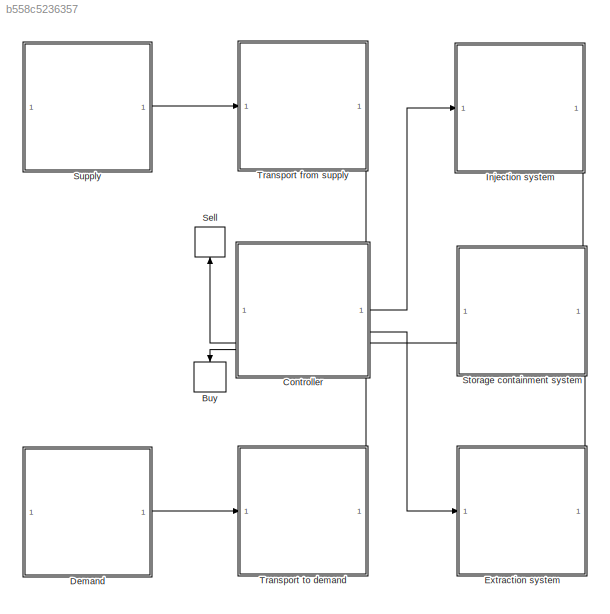
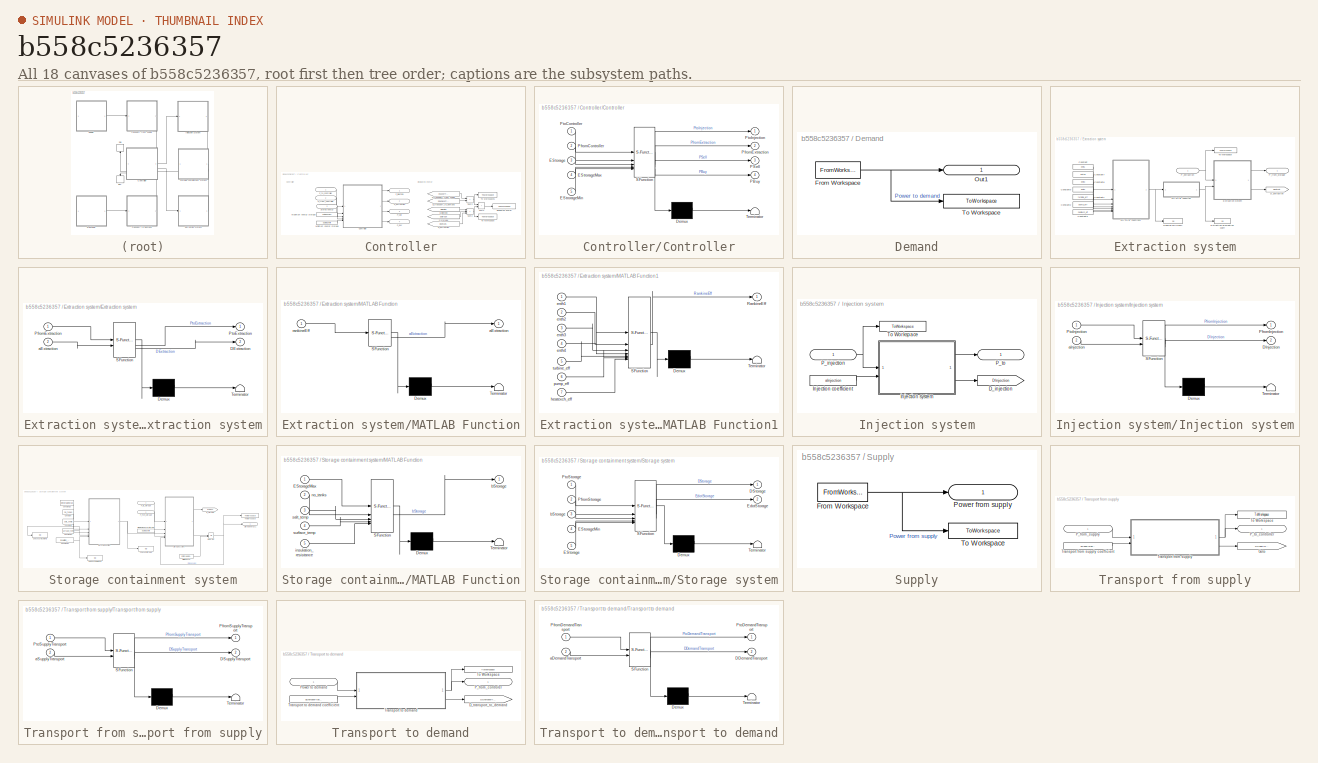
[diagram: thumbnail index - all 18 canvases of the model, root first then tree order]
MODEL slx_b558c5236357
KIND model
CONFIG AbsTol = auto
CONFIG EnableMultiTasking = off
CONFIG FixedStep = 0.05
CONFIG InitFcn = clear all;\nclose all;\nclc;\n\n% add the data and script directories\naddpath('data','scripts');\n\n% load the constants (units)\nconstants;\n\n% load the simulation parameters \npreprocessing;
CONFIG MaxStep = 0.05
CONFIG MinStep = auto
CONFIG RelTol = 1e-3
CONFIG SampleTimeConstraint = Unconstrained
CONFIG SolverName = FixedStepAuto
CONFIG StartTime = 0.0
CONFIG StopFcn = postprocessing;
CONFIG StopTime = 35040
BLOCK [ToWorkspace] Buy
  FixptAsFi = on
  MaxDataPoints = inf
  NameLocation = left
  SampleTime = -1
  VariableName = PBuy
BLOCK [SubSystem] Controller
  PortSchema = {"entries":[{"content":{"sides":[{"content":{"connectorIds":["Out3","Out4"]},"type":"ConnectorPlacement.EquallySpacedRectSide","uuid":"4daf33ce-c96a-4783-b5c4-228eed953e01"},{"content":{"connectorIds":["Out1","In3","Out2"],"side":"RIGHT"},"type":"ConnectorPlacement.EquallySpacedRectSide","uuid":"e9942e50-8467-4af8-b79b-80636cbc76e5"},{"content":{"connectorIds":["In1"],"side":"TOP"},"type":"Connect...<+415ch>
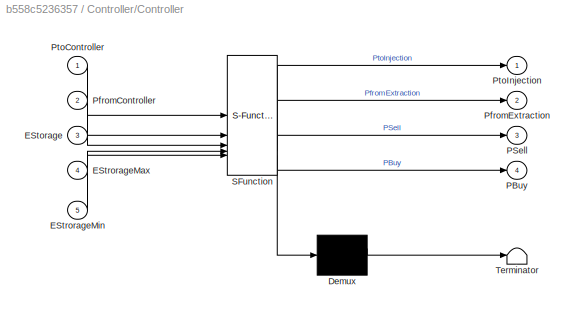
BLOCK [SubSystem] Controller/Controller
  ErrorFcn = Stateflow.Translate.translate
  PermitHierarchicalResolution = ExplicitOnly
  SFBlockType = MATLAB Function
  TreatAsAtomicUnit = on
BLOCK [Demux] Controller/Controller/ Demux 
  Outputs = 1
BLOCK [S-Function] Controller/Controller/ SFunction 
  EnableBusSupport = on
  FunctionName = sf_sfun
  PortCounts = [5 5]
  SFcnIsStateOwnerBlock = off
  SFunctionDeploymentMode = off
  Tag = Stateflow S-Function 3
BLOCK [Terminator] Controller/Controller/ Terminator 
BLOCK [Inport] Controller/Controller/EStorage
  Port = 3
BLOCK [Inport] Controller/Controller/EStrorageMax
  Port = 4
BLOCK [Inport] Controller/Controller/EStrorageMin
  Port = 5
BLOCK [Outport] Controller/Controller/PBuy
  Port = 4
BLOCK [Outport] Controller/Controller/PSell
  Port = 3
BLOCK [Inport] Controller/Controller/PfromController
  Port = 2
BLOCK [Outport] Controller/Controller/PfromExtraction
  Port = 2
BLOCK [Inport] Controller/Controller/PtoController
BLOCK [Outport] Controller/Controller/PtoInjection
BLOCK [From] Controller/D_extraction
  GotoTag = DExtraction
  TagVisibility = global
BLOCK [From] Controller/D_injection
  GotoTag = DInjection
  TagVisibility = global
BLOCK [From] Controller/D_storage
  GotoTag = DStorage
  TagVisibility = global
BLOCK [From] Controller/D_transport_from_supply
  GotoTag = DSupplyTransport
  TagVisibility = global
BLOCK [From] Controller/D_transport_to_demand
  GotoTag = DDemandTransport
  TagVisibility = global
BLOCK [ToWorkspace] Controller/Dissipated energy
  FixptAsFi = on
  MaxDataPoints = inf
  SampleTime = -1
  VariableName = D
BLOCK [Constant] Controller/Maximum energy storage
  Value = EStorageMax
BLOCK [Constant] Controller/Minimum energy storage
  Value = EStorageMin
BLOCK [Outport] Controller/P_buy
  IconDisplay = Signal name
  Port = 4
BLOCK [Outport] Controller/P_extraction
  IconDisplay = Signal name
  Port = 2
BLOCK [Inport] Controller/P_from_controller
  IconDisplay = Port number and signal name
  Port = 2
BLOCK [Outport] Controller/P_injection
  IconDisplay = Signal name
BLOCK [Outport] Controller/P_sell
  IconDisplay = Signal name
  Port = 3
BLOCK [Inport] Controller/P_to_controller
  IconDisplay = Port number and signal name
BLOCK [Inport] Controller/Stored energy
  IconDisplay = Signal name
  Port = 3
BLOCK [Sum] Controller/Sum1
  IconShape = rectangular
BLOCK [Sum] Controller/Sum2
  IconShape = rectangular
  Inputs = +++
BLOCK [Sum] Controller/Sum3
  IconShape = rectangular
BLOCK [ToWorkspace] Controller/To Workspace
  FixptAsFi = on
  MaxDataPoints = inf
  SampleTime = -1
  VariableName = DStorage
BLOCK [ToWorkspace] Controller/To Workspace1
  FixptAsFi = on
  MaxDataPoints = inf
  SampleTime = -1
  VariableName = DTransport
BLOCK [SubSystem] Demand
BLOCK [FromWorkspace] Demand/From Workspace
  OutputAfterFinalValue = Setting to zero
  VariableName = Demand
BLOCK [Outport] Demand/Out1
  IconDisplay = Signal name
BLOCK [ToWorkspace] Demand/To Workspace
  FixptAsFi = on
  MaxDataPoints = inf
  SampleTime = -1
  VariableName = PDemand
BLOCK [SubSystem] Extraction system
  NameLocation = top
  PortSchema = {"entries":[{"content":{"sides":[{"content":{"connectorIds":[]},"type":"ConnectorPlacement.EquallySpacedRectSide","uuid":"05c5933d-55fc-4e06-853f-fc26d42905f9"},{"content":{"connectorIds":["In1"],"side":"RIGHT"},"type":"ConnectorPlacement.EquallySpacedRectSide","uuid":"327426c5-31d5-498b-a2bd-83e49353408c"},{"content":{"connectorIds":[],"side":"TOP"},"type":"ConnectorPlacement.EquallySpacedRectSid...<+384ch>
BLOCK [Constant] Extraction system/Constant
  Value = enth1
BLOCK [Constant] Extraction system/Constant1
  Value = turbine_eff
BLOCK [Constant] Extraction system/Constant2
  Value = pump_eff
BLOCK [Constant] Extraction system/Constant3
  Value = heatexch_eff
BLOCK [Constant] Extraction system/Constant7
  Value = enth2
BLOCK [Constant] Extraction system/Constant8
  Value = enth3
BLOCK [Constant] Extraction system/Constant9
  Value = enth4
BLOCK [Goto] Extraction system/D_extraction
  GotoTag = DExtraction
  TagVisibility = global
BLOCK [Display] Extraction system/Extraction dissipation coeff
  Decimation = 1
BLOCK [SubSystem] Extraction system/Extraction system
  ErrorFcn = Stateflow.Translate.translate
  PermitHierarchicalResolution = ExplicitOnly
  SFBlockType = MATLAB Function
  TreatAsAtomicUnit = on
BLOCK [Demux] Extraction system/Extraction system/ Demux 
  Outputs = 1
BLOCK [S-Function] Extraction system/Extraction system/ SFunction 
  EnableBusSupport = on
  FunctionName = sf_sfun
  PortCounts = [2 3]
  SFcnIsStateOwnerBlock = off
  SFunctionDeploymentMode = off
  Tag = Stateflow S-Function 4
BLOCK [Terminator] Extraction system/Extraction system/ Terminator 
BLOCK [Outport] Extraction system/Extraction system/DExtraction
  Port = 2
BLOCK [Inport] Extraction system/Extraction system/PfromExtraction
BLOCK [Outport] Extraction system/Extraction system/PtoExtraction
BLOCK [Inport] Extraction system/Extraction system/aExtraction
  Port = 2
BLOCK [SubSystem] Extraction system/MATLAB Function
  ErrorFcn = Stateflow.Translate.translate
  PermitHierarchicalResolution = ExplicitOnly
  SFBlockType = MATLAB Function
  TreatAsAtomicUnit = on
BLOCK [Demux] Extraction system/MATLAB Function/ Demux 
  Outputs = 1
BLOCK [S-Function] Extraction system/MATLAB Function/ SFunction 
  EnableBusSupport = on
  FunctionName = sf_sfun
  PortCounts = [1 2]
  SFcnIsStateOwnerBlock = off
  SFunctionDeploymentMode = off
  Tag = Stateflow S-Function 6
BLOCK [Terminator] Extraction system/MATLAB Function/ Terminator 
BLOCK [Outport] Extraction system/MATLAB Function/aExtraction
BLOCK [Inport] Extraction system/MATLAB Function/rankineEff
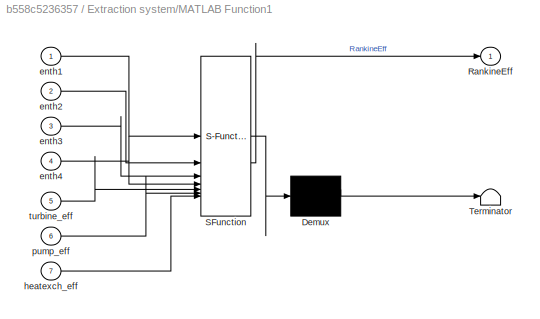
BLOCK [SubSystem] Extraction system/MATLAB Function1
  ErrorFcn = Stateflow.Translate.translate
  PermitHierarchicalResolution = ExplicitOnly
  SFBlockType = MATLAB Function
  TreatAsAtomicUnit = on
BLOCK [Demux] Extraction system/MATLAB Function1/ Demux 
  Outputs = 1
BLOCK [S-Function] Extraction system/MATLAB Function1/ SFunction 
  EnableBusSupport = on
  FunctionName = sf_sfun
  PortCounts = [7 2]
  SFcnIsStateOwnerBlock = off
  SFunctionDeploymentMode = off
  Tag = Stateflow S-Function 9
BLOCK [Terminator] Extraction system/MATLAB Function1/ Terminator 
BLOCK [Outport] Extraction system/MATLAB Function1/RankineEff
BLOCK [Inport] Extraction system/MATLAB Function1/enth1
BLOCK [Inport] Extraction system/MATLAB Function1/enth2
  Port = 2
BLOCK [Inport] Extraction system/MATLAB Function1/enth3
  Port = 3
BLOCK [Inport] Extraction system/MATLAB Function1/enth4
  Port = 4
BLOCK [Inport] Extraction system/MATLAB Function1/heatexch_eff
  Port = 7
BLOCK [Inport] Extraction system/MATLAB Function1/pump_eff
  Port = 6
BLOCK [Inport] Extraction system/MATLAB Function1/turbine_eff
  Port = 5
BLOCK [Inport] Extraction system/P_extraction
  IconDisplay = Signal name
BLOCK [Outport] Extraction system/P_from_storage
  IconDisplay = Signal name
BLOCK [Display] Extraction system/Rankine efficiency
  Decimation = 1
BLOCK [ToWorkspace] Extraction system/To Workspace
  FixptAsFi = on
  MaxDataPoints = inf
  SampleTime = -1
  VariableName = PfromExtraction
BLOCK [SubSystem] Injection system
  NameLocation = top
  PortSchema = {"entries":[{"content":{"sides":[{"content":{"connectorIds":[]},"type":"ConnectorPlacement.EquallySpacedRectSide","uuid":"05c5933d-55fc-4e06-853f-fc26d42905f9"},{"content":{"connectorIds":["In1"],"side":"RIGHT"},"type":"ConnectorPlacement.EquallySpacedRectSide","uuid":"327426c5-31d5-498b-a2bd-83e49353408c"},{"content":{"connectorIds":["Out1"],"side":"TOP"},"type":"ConnectorPlacement.EquallySpacedR...<+384ch>
BLOCK [Goto] Injection system/D_injection
  GotoTag = DInjection
  TagVisibility = global
BLOCK [Constant] Injection system/Injection coefficient
  Value = aInjection
BLOCK [SubSystem] Injection system/Injection system
  ErrorFcn = Stateflow.Translate.translate
  PermitHierarchicalResolution = ExplicitOnly
  SFBlockType = MATLAB Function
  TreatAsAtomicUnit = on
BLOCK [Demux] Injection system/Injection system/ Demux 
  Outputs = 1
BLOCK [S-Function] Injection system/Injection system/ SFunction 
  EnableBusSupport = on
  FunctionName = sf_sfun
  PortCounts = [2 3]
  SFcnIsStateOwnerBlock = off
  SFunctionDeploymentMode = off
  Tag = Stateflow S-Function 1
BLOCK [Terminator] Injection system/Injection system/ Terminator 
BLOCK [Outport] Injection system/Injection system/DInjection
  Port = 2
BLOCK [Outport] Injection system/Injection system/PfromInjection
BLOCK [Inport] Injection system/Injection system/PtoInjection
BLOCK [Inport] Injection system/Injection system/aInjection
  Port = 2
BLOCK [Inport] Injection system/P_injection
  IconDisplay = Signal name
BLOCK [Outport] Injection system/P_to
  IconDisplay = Port number and signal name
BLOCK [ToWorkspace] Injection system/To Workspace
  FixptAsFi = on
  MaxDataPoints = inf
  SampleTime = -1
  VariableName = PtoInjection
BLOCK [ToWorkspace] Sell
  FixptAsFi = on
  MaxDataPoints = inf
  NameLocation = right
  SampleTime = -1
  VariableName = PSell
BLOCK [SubSystem] Storage containment system
  PortSchema = {"entries":[{"content":{"sides":[{"content":{"connectorIds":["Out1"]},"type":"ConnectorPlacement.EquallySpacedRectSide","uuid":"0ba48424-33b9-4934-970f-64fe5d8b070e"},{"content":{"connectorIds":[],"side":"RIGHT"},"type":"ConnectorPlacement.EquallySpacedRectSide","uuid":"9cde340f-8f39-4499-9a12-5e1623737660"},{"content":{"connectorIds":["In1"],"side":"TOP"},"type":"ConnectorPlacement.EquallySpacedR...<+389ch>
BLOCK [Display] Storage containment system/Check bStorage
  Decimation = 1
BLOCK [Display] Storage containment system/Check resistance
  Decimation = 1
BLOCK [Display] Storage containment system/Check surface temp
  Decimation = 1
BLOCK [Constant] Storage containment system/Constant
  Value = no_tanks
BLOCK [Constant] Storage containment system/Constant13
  Value = surface_temp
BLOCK [Constant] Storage containment system/Constant14
  Value = insulation_resistance
BLOCK [Constant] Storage containment system/Constant15
  Value = EStorageMax
BLOCK [Constant] Storage containment system/Constant2
  Value = salt_temp
BLOCK [Goto] Storage containment system/D_storage
  GotoTag = DStorage
  TagVisibility = global
BLOCK [Constant] Storage containment system/Initial energy
  Value = EStorageInitial
BLOCK [Integrator] Storage containment system/Integrator
  InitialConditionSource = external
BLOCK [SubSystem] Storage containment system/MATLAB Function
  ErrorFcn = Stateflow.Translate.translate
  PermitHierarchicalResolution = ExplicitOnly
  SFBlockType = MATLAB Function
  TreatAsAtomicUnit = on
BLOCK [Demux] Storage containment system/MATLAB Function/ Demux 
  Outputs = 1
BLOCK [S-Function] Storage containment system/MATLAB Function/ SFunction 
  EnableBusSupport = on
  FunctionName = sf_sfun
  PortCounts = [5 2]
  SFcnIsStateOwnerBlock = off
  SFunctionDeploymentMode = off
  Tag = Stateflow S-Function 8
BLOCK [Terminator] Storage containment system/MATLAB Function/ Terminator 
BLOCK [Inport] Storage containment system/MATLAB Function/EStorageMax
BLOCK [Outport] Storage containment system/MATLAB Function/bStorage
BLOCK [Inport] Storage containment system/MATLAB Function/insulation_resistance
  Port = 5
BLOCK [Inport] Storage containment system/MATLAB Function/no_tanks
  Port = 2
BLOCK [Inport] Storage containment system/MATLAB Function/salt_temp
  Port = 3
BLOCK [Inport] Storage containment system/MATLAB Function/surface_temp
  Port = 4
BLOCK [Constant] Storage containment system/Minimum energy storage
  Value = EStorageMin
BLOCK [Inport] Storage containment system/P_from_storage
  IconDisplay = Port number and signal name
  Port = 2
BLOCK [Inport] Storage containment system/P_to_storage
  IconDisplay = Port number and signal name
BLOCK [SubSystem] Storage containment system/Storage system
  ErrorFcn = Stateflow.Translate.translate
  PermitHierarchicalResolution = ExplicitOnly
  SFBlockType = MATLAB Function
  TreatAsAtomicUnit = on
BLOCK [Demux] Storage containment system/Storage system/ Demux 
  Outputs = 1
BLOCK [S-Function] Storage containment system/Storage system/ SFunction 
  EnableBusSupport = on
  FunctionName = sf_sfun
  PortCounts = [5 3]
  SFcnIsStateOwnerBlock = off
  SFunctionDeploymentMode = off
  Tag = Stateflow S-Function 5
BLOCK [Terminator] Storage containment system/Storage system/ Terminator 
BLOCK [Outport] Storage containment system/Storage system/DStorage
BLOCK [Inport] Storage containment system/Storage system/EStorage
  Port = 5
BLOCK [Inport] Storage containment system/Storage system/EStorageMin
  Port = 4
BLOCK [Outport] Storage containment system/Storage system/EdotStorage
  Port = 2
BLOCK [Inport] Storage containment system/Storage system/PfromStorage
  Port = 2
BLOCK [Inport] Storage containment system/Storage system/PtoStorage
BLOCK [Inport] Storage containment system/Storage system/bStorage
  Port = 3
BLOCK [Outport] Storage containment system/Stored energy1
  IconDisplay = Signal name
BLOCK [ToWorkspace] Storage containment system/To Workspace
  FixptAsFi = on
  MaxDataPoints = inf
  SampleTime = -1
  VariableName = EStorage
BLOCK [SubSystem] Supply
BLOCK [FromWorkspace] Supply/From Workspace
  OutputAfterFinalValue = Setting to zero
  VariableName = Supply
BLOCK [Outport] Supply/Power from supply
  IconDisplay = Signal name
BLOCK [ToWorkspace] Supply/To Workspace
  MaxDataPoints = inf
  SampleTime = -1
  VariableName = PSupply
BLOCK [SubSystem] Transport from supply
  PortSchema = {"entries":[{"content":{"sides":[{"content":{"connectorIds":["In1"]},"type":"ConnectorPlacement.EquallySpacedRectSide","uuid":"31329006-3d36-4d93-9c44-7503a515d397"},{"content":{"connectorIds":[],"side":"RIGHT"},"type":"ConnectorPlacement.EquallySpacedRectSide","uuid":"aba139c7-f9b6-4881-a56b-a4cbbedacd88"},{"content":{"connectorIds":[],"side":"TOP"},"type":"ConnectorPlacement.EquallySpacedRectSid...<+384ch>
BLOCK [Goto] Transport from supply/Goto
  GotoTag = DSupplyTransport
  TagVisibility = global
BLOCK [Inport] Transport from supply/P_from_supply
  IconDisplay = Signal name
BLOCK [Outport] Transport from supply/P_to_controller
  IconDisplay = Signal name
BLOCK [ToWorkspace] Transport from supply/To Workspace
  MaxDataPoints = inf
  SampleTime = -1
  VariableName = PfromSupplyTransport
BLOCK [SubSystem] Transport from supply/Transport from supply
  ErrorFcn = Stateflow.Translate.translate
  PermitHierarchicalResolution = ExplicitOnly
  SFBlockType = MATLAB Function
  TreatAsAtomicUnit = on
BLOCK [Constant] Transport from supply/Transport from supply coefficient
  Value = aSupplyTransport
BLOCK [Demux] Transport from supply/Transport from supply/ Demux 
  Outputs = 1
BLOCK [S-Function] Transport from supply/Transport from supply/ SFunction 
  EnableBusSupport = on
  FunctionName = sf_sfun
  PortCounts = [2 3]
  SFcnIsStateOwnerBlock = off
  SFunctionDeploymentMode = off
  Tag = Stateflow S-Function 2
BLOCK [Terminator] Transport from supply/Transport from supply/ Terminator 
BLOCK [Outport] Transport from supply/Transport from supply/DSupplyTransport
  Port = 2
BLOCK [Outport] Transport from supply/Transport from supply/PfromSupplyTransport
BLOCK [Inport] Transport from supply/Transport from supply/PtoSupplyTransport
BLOCK [Inport] Transport from supply/Transport from supply/aSupplyTransport
  Port = 2
BLOCK [SubSystem] Transport to demand
  PortSchema = {"entries":[{"content":{"sides":[{"content":{"connectorIds":["In1"]},"type":"ConnectorPlacement.EquallySpacedRectSide","uuid":"31329006-3d36-4d93-9c44-7503a515d397"},{"content":{"connectorIds":[],"side":"RIGHT"},"type":"ConnectorPlacement.EquallySpacedRectSide","uuid":"aba139c7-f9b6-4881-a56b-a4cbbedacd88"},{"content":{"connectorIds":["Out1"],"side":"TOP"},"type":"ConnectorPlacement.EquallySpacedR...<+384ch>
BLOCK [Goto] Transport to demand/D_transport_to_demand
  GotoTag = DDemandTransport
  TagVisibility = global
BLOCK [Outport] Transport to demand/P_from_controler
  IconDisplay = Signal name
BLOCK [Inport] Transport to demand/Power to demand
  IconDisplay = Signal name
BLOCK [ToWorkspace] Transport to demand/To Workspace
  MaxDataPoints = inf
  SampleTime = -1
  VariableName = PtoDemandTransport
BLOCK [SubSystem] Transport to demand/Transport to demand
  ErrorFcn = Stateflow.Translate.translate
  PermitHierarchicalResolution = ExplicitOnly
  SFBlockType = MATLAB Function
  TreatAsAtomicUnit = on
BLOCK [Constant] Transport to demand/Transport to demand coefficient
  Value = aDemandTransport
BLOCK [Demux] Transport to demand/Transport to demand/ Demux 
  Outputs = 1
BLOCK [S-Function] Transport to demand/Transport to demand/ SFunction 
  EnableBusSupport = on
  FunctionName = sf_sfun
  PortCounts = [2 3]
  SFcnIsStateOwnerBlock = off
  SFunctionDeploymentMode = off
  Tag = Stateflow S-Function 7
BLOCK [Terminator] Transport to demand/Transport to demand/ Terminator 
BLOCK [Outport] Transport to demand/Transport to demand/DDemandTransport
  Port = 2
BLOCK [Inport] Transport to demand/Transport to demand/PfromDemandTransport
BLOCK [Outport] Transport to demand/Transport to demand/PtoDemandTransport
BLOCK [Inport] Transport to demand/Transport to demand/aDemandTransport
  Port = 2
ANNOTATION Controller: Controller
ANNOTATION Controller: Dissipated energy
LINE Controller/Controller:1 -> Controller/P_injection:1
LINE Controller/Controller:2 -> Controller/P_extraction:1
LINE Controller/Controller:3 -> Controller/P_sell:1
LINE Controller/Controller:4 -> Controller/P_buy:1
LINE Controller/D_extraction:1 -> Controller/Sum2:3
LINE Controller/D_injection:1 -> Controller/Sum2:1
LINE Controller/D_storage:1 -> Controller/Sum2:2
LINE Controller/D_transport_from_supply:1 -> Controller/Sum1:1
LINE Controller/D_transport_to_demand:1 -> Controller/Sum1:2
LINE Controller/Maximum energy storage:1 -> Controller/Controller:4
LINE Controller/Minimum energy storage:1 -> Controller/Controller:5
LINE Controller/P_from_controller:1 -> Controller/Controller:2
LINE Controller/P_to_controller:1 -> Controller/Controller:1
LINE Controller/Stored energy:1 -> Controller/Controller:3
NET Controller/Sum1:1 -> Controller/Sum3:1, Controller/To Workspace1:1
NET Controller/Sum2:1 -> Controller/Sum3:2, Controller/To Workspace:1
LINE Controller/Sum3:1 -> Controller/Dissipated energy:1
LINE Controller:1 -> Injection system:1
LINE Controller:2 -> Extraction system:1
LINE Controller:3 -> Sell:1
LINE Controller:4 -> Buy:1
NET Demand/From Workspace:1 -> Demand/Out1:1, Demand/To Workspace:1
LINE Demand:1 -> Transport to demand:1
LINE Extraction system/Constant1:1 -> Extraction system/MATLAB Function1:5
LINE Extraction system/Constant2:1 -> Extraction system/MATLAB Function1:6
LINE Extraction system/Constant3:1 -> Extraction system/MATLAB Function1:7
LINE Extraction system/Constant7:1 -> Extraction system/MATLAB Function1:2
LINE Extraction system/Constant8:1 -> Extraction system/MATLAB Function1:3
LINE Extraction system/Constant9:1 -> Extraction system/MATLAB Function1:4
LINE Extraction system/Constant:1 -> Extraction system/MATLAB Function1:1
LINE Extraction system/Extraction system:1 -> Extraction system/P_from_storage:1
LINE Extraction system/Extraction system:2 -> Extraction system/D_extraction:1
NET Extraction system/MATLAB Function1:1 -> Extraction system/MATLAB Function:1, Extraction system/Rankine efficiency:1
NET Extraction system/MATLAB Function:1 -> Extraction system/Extraction dissipation coeff:1, Extraction system/Extraction system:2
NET Extraction system/P_extraction:1 -> Extraction system/Extraction system:1, Extraction system/To Workspace:1
LINE Extraction system:1 -> Storage containment system:2
LINE Injection system/Injection coefficient:1 -> Injection system/Injection system:2
LINE Injection system/Injection system:1 -> Injection system/P_to:1
LINE Injection system/Injection system:2 -> Injection system/D_injection:1
NET Injection system/P_injection:1 -> Injection system/Injection system:1, Injection system/To Workspace:1
LINE Injection system:1 -> Storage containment system:1
NET Storage containment system/Constant13:1 -> Storage containment system/Check surface temp:1, Storage containment system/MATLAB Function:4
NET Storage containment system/Constant14:1 -> Storage containment system/Check resistance:1, Storage containment system/MATLAB Function:5
LINE Storage containment system/Constant15:1 -> Storage containment system/MATLAB Function:1
LINE Storage containment system/Constant2:1 -> Storage containment system/MATLAB Function:3
LINE Storage containment system/Constant:1 -> Storage containment system/MATLAB Function:2
LINE Storage containment system/Initial energy:1 -> Storage containment system/Integrator:2
NET Storage containment system/Integrator:1 -> Storage containment system/Storage system:5, Storage containment system/Stored energy1:1, Storage containment system/To Workspace:1
NET Storage containment system/MATLAB Function:1 -> Storage containment system/Check bStorage:1, Storage containment system/Storage system:3
LINE Storage containment system/Minimum energy storage:1 -> Storage containment system/Storage system:4
LINE Storage containment system/P_from_storage:1 -> Storage containment system/Storage system:2
LINE Storage containment system/P_to_storage:1 -> Storage containment system/Storage system:1
LINE Storage containment system/Storage system:1 -> Storage containment system/D_storage:1
LINE Storage containment system/Storage system:2 -> Storage containment system/Integrator:1
LINE Storage containment system:1 -> Controller:3
NET Supply/From Workspace:1 -> Supply/Power from supply:1, Supply/To Workspace:1
LINE Supply:1 -> Transport from supply:1
LINE Transport from supply/P_from_supply:1 -> Transport from supply/Transport from supply:1
LINE Transport from supply/Transport from supply coefficient:1 -> Transport from supply/Transport from supply:2
NET Transport from supply/Transport from supply:1 -> Transport from supply/P_to_controller:1, Transport from supply/To Workspace:1
LINE Transport from supply/Transport from supply:2 -> Transport from supply/Goto:1
LINE Transport from supply:1 -> Controller:1
LINE Transport to demand/Power to demand:1 -> Transport to demand/Transport to demand:1
LINE Transport to demand/Transport to demand coefficient:1 -> Transport to demand/Transport to demand:2
NET Transport to demand/Transport to demand:1 -> Transport to demand/P_from_controler:1, Transport to demand/To Workspace:1
LINE Transport to demand/Transport to demand:2 -> Transport to demand/D_transport_to_demand:1
LINE Transport to demand:1 -> Controller:2
note: NET lines group one-source signal fan-out (src -> all destinations, sorted); 1:1 wires keep LINE
CHART Storage containment system/MATLAB Function states=1 transitions=1
  STATE_LABEL 'eML_blk_kernel()'
  STATE_LABEL 'SCRIPT:\nfunction bStorage = calculate_bStorage(EStorageMax, no_tanks, salt_temp, surface_temp, insulation_resistance)\n\n\nlosses_per_tank = (salt_temp - surface_temp) / insulation_resistance;\n\n% Total losses\ntotal_losses = no_tanks * losses_per_tank;\n\n% Dissipation coefficient\nbStorage = total_losses / (EStorageMax);\n\nend'
CHART Extraction system/MATLAB Function1 states=1 transitions=1
  STATE_LABEL 'eML_blk_kernel()'
  STATE_LABEL 'SCRIPT:\nfunction RankineEff = Rankine(enth1, enth2, enth3, enth4, turbine_eff, pump_eff, heatexch_eff)\n\n    turbine_work = turbine_eff * (enth3-enth4);\n    pump_work = (enth2-enth1) / pump_eff;\n    heat_input = (enth3-enth2) / heatexch_eff;\n\n    RankineEff = (turbine_work - pump_work) / heat_input;\n\nend'
CHART Injection system/Injection system states=1 transitions=1
  STATE_LABEL 'eML_blk_kernel()'
  STATE_LABEL 'SCRIPT:\nfunction [PfromInjection, DInjection] = injection(PtoInjection, aInjection)\n    DInjection = aInjection * PtoInjection;\n    PfromInjection = PtoInjection - DInjection;'
CHART Transport from supply/Transport from supply states=1 transitions=1
  STATE_LABEL 'eML_blk_kernel()'
  STATE_LABEL 'SCRIPT:\nfunction [PfromSupplyTransport, DSupplyTransport] = supplyTransport(PtoSupplyTransport, aSupplyTransport)\n    DSupplyTransport = aSupplyTransport * PtoSupplyTransport;\n    PfromSupplyTransport = PtoSupplyTransport - DSupplyTransport;'
CHART Controller/Controller states=1 transitions=1
  STATE_LABEL 'eML_blk_kernel()'
  STATE_LABEL 'SCRIPT:\nfunction [PtoInjection, PfromExtraction, PSell, PBuy] = controller(PtoController, PfromController, EStorage, EStrorageMax, EStrorageMin)\n\n    %% Time and margin settings\n    margin = 4;   % Safety margin for storage operations\n    dt = 900;     % Time step in seconds (convert power to energy)\n\n    %% Calculate power difference\n    deltaP = PtoController - PfromController;\n\n    %% Initializ...<+1014ch>'
CHART Extraction system/Extraction system states=1 transitions=1
  STATE_LABEL 'eML_blk_kernel()'
  STATE_LABEL 'SCRIPT:\nfunction [PtoExtraction, DExtraction] = extraction(PfromExtraction, aExtraction)        % Outputs left, inputs right\n    \n    DExtraction = aExtraction / (1-aExtraction) * PfromExtraction;  % Losses in extarction\n\n    PtoExtraction = PfromExtraction + DExtraction;  % Calculate how much energy needs to be extracted from storage\n\nend'
CHART Storage containment system/Storage system states=1 transitions=1
  STATE_LABEL 'eML_blk_kernel()'
  STATE_LABEL 'SCRIPT:\nfunction [DStorage, EdotStorage]= Storage(PtoStorage, PfromStorage, bStorage, EStorageMin, EStorage)\n    DStorage = bStorage * (EStorage-EStorageMin);\n    EdotStorage = PtoStorage - PfromStorage - DStorage;'
CHART Extraction system/MATLAB Function states=1 transitions=1
  STATE_LABEL 'eML_blk_kernel()'
  STATE_LABEL 'SCRIPT:\nfunction aExtraction = dissipation_coeff(rankineEff)\n\naExtraction = 1 - rankineEff;\n\nend'
CHART Transport to demand/Transport to demand states=1 transitions=1
  STATE_LABEL 'eML_blk_kernel()'
  STATE_LABEL 'SCRIPT:\nfunction [PtoDemandTransport, DDemandTransport] = demandTransport(PfromDemandTransport, aDemandTransport)\n    DDemandTransport = aDemandTransport / (1-aDemandTransport) * PfromDemandTransport;\n    PtoDemandTransport = PfromDemandTransport + DDemandTransport;'
CHART  states=0 transitions=0
CHART  states=0 transitions=0
CHART  states=0 transitions=0
CHART  states=0 transitions=0
CHART  states=0 transitions=0
CHART  states=0 transitions=0
CHART  states=0 transitions=0
CHART  states=0 transitions=0
CHART  states=0 transitions=0
